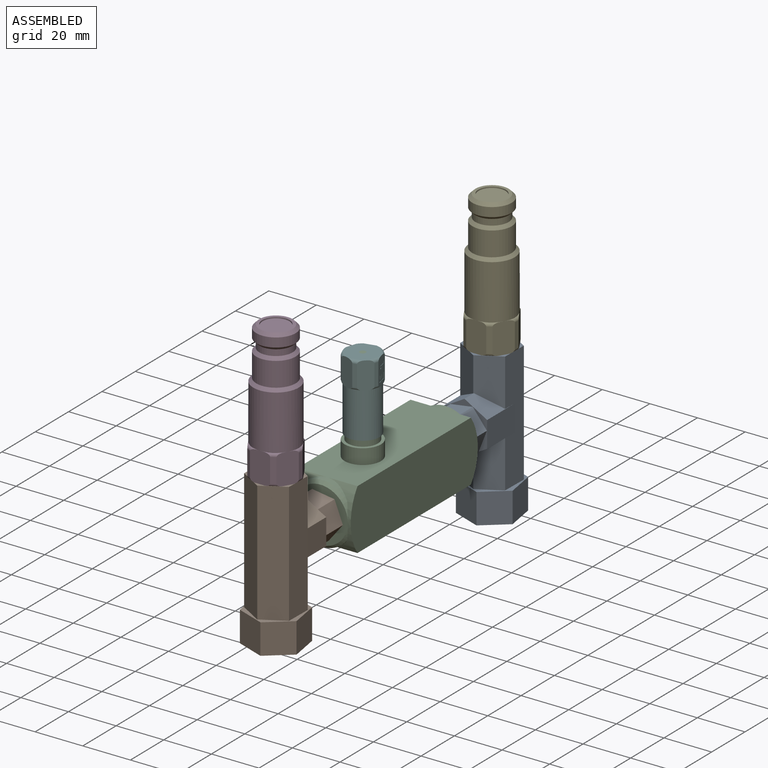
[diagram: assembled view]
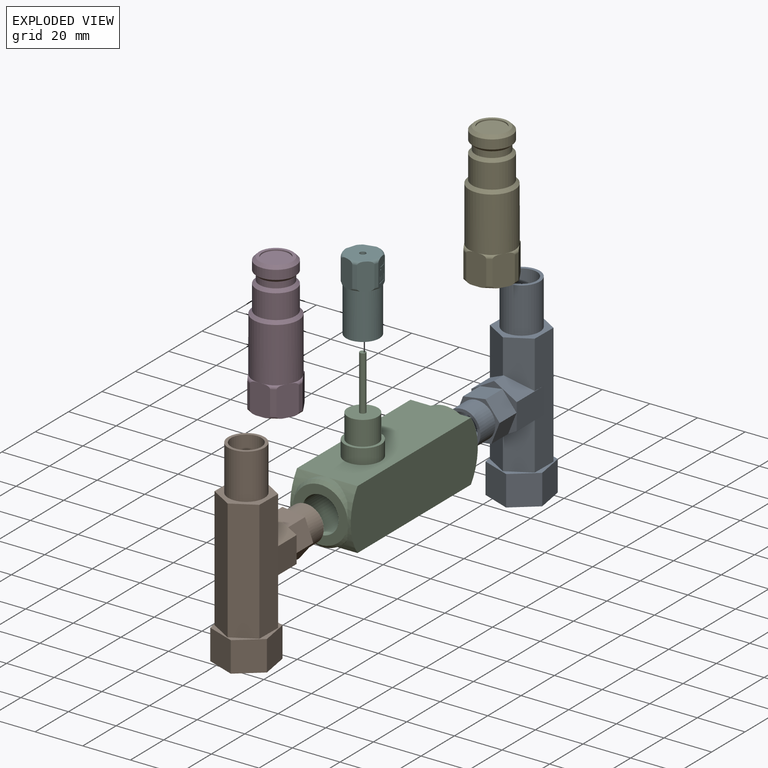
[diagram: exploded view]
GUIDED TOUR — MATED ASSEMBLY WITH SUBASSEMBLIES (Onshape document 58734178e3815217dc91f460, AutoMate assembly 58734178e3815217dc91f460_f798ebabe00ff8d9d65b1478_e0973994b852b6b7ab1b3e93_default)

This assembly has 8 component occurrences arranged in 6 top-level units: 4 individual components plus 2 subassemblies (S0, S1). The tour has two levels: first the top level, where each subassembly is treated as one rigid unit; then each subassembly is toured internally in its own section (nesting deeper than one subassembly level is flattened into its subassembly's section).

Components are labeled P0..P7 across the whole record; subassembly units are labeled S0..S1. A mate is a constraint between two units; its type names the relative motion it leaves free:
  FASTENED — locks the two components together rigidly (no relative motion),
  REVOLUTE — leaves rotation about the listed axis free (a hinge).
Axis/direction vectors are unit vectors and 'through' points are millimeter coordinates, both in the assembly's world frame.

TOP-LEVEL MATES (between units; each subassembly's internal mates are listed in its own section)
  1. FASTENED "Fastened 4": P4 <-> S1, direction (0.000, 0.000, -1.000) through (-30.42, -77.83, 31.53) mm
  2. FASTENED "Fastened 3": P5 <-> S0, direction (0.000, 0.000, -1.000) through (-30.42, 51.71, 31.53) mm
  3. FASTENED "Fastened 1": S0 <-> P3, direction (0.000, -1.000, 0.000) through (-30.42, 25.04, -12.92) mm
  4. REVOLUTE "Revolute 1": P6 <-> P3, axis (0.000, 0.000, 1.000) through (-30.42, -25.76, 39.15) mm
  5. FASTENED "Fastened 2": S1 <-> P3, direction (0.000, 1.000, 0.000) through (-30.42, -51.16, -12.92) mm

TOP-LEVEL ASSEMBLY ORDER
  1. P3 — the base component [order heuristic]
  2. S0 [order heuristic]
  3. S1 [order heuristic]
  4. P6 [order heuristic]
  5. P4 [order heuristic]
  6. P5 [order heuristic]
Order-tag legend:
  [order heuristic] — this assembly is geometrically interlocked (no collision-free removal order exists), so components are listed in mate-graph order; insertion feasibility is not verified.

Of the 8 component occurrences, 4 carry the full construction recipe — the FeatureScript program that regenerates the part's solid from scratch; the rest are supplied as boundary geometry only. Each toured unit is shown spotlighted twice — assembled, then exploded with a leader line back to its socket (green = recipe-attached component, orange = geometry-only, blue = subassembly unit; the rest desaturated gray).
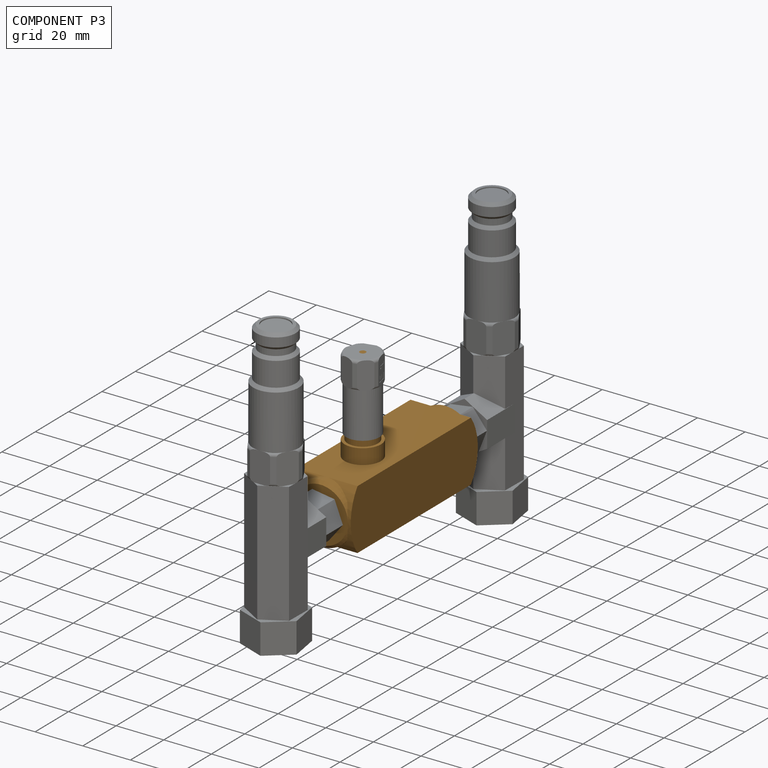
[diagram: component P3 — assembled]
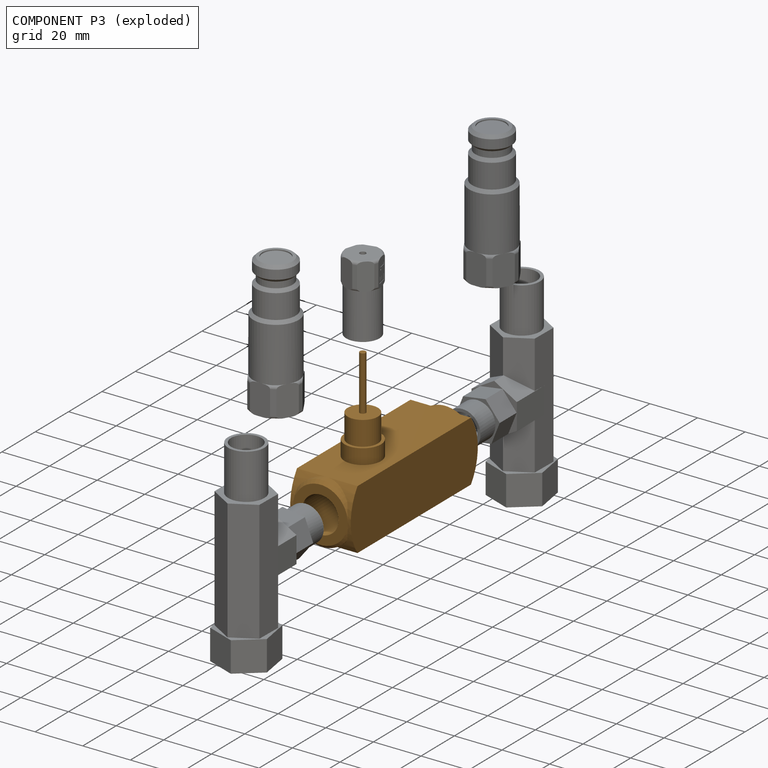
[diagram: component P3 — exploded]
COMPONENT P3 — geometry summary (no construction recipe available for this part):
  bounding box: 76.2 x 64.8 x 25.4 mm
  B-rep topology: 1 solid, 25 faces, 104 edges
  volume: 37021 mm^3 (30% of its bounding box)
  symmetry: mirror-symmetric across its x mid-plane
Held by: FASTENED mate "Fastened 1" to P0; REVOLUTE mate "Revolute 1" to P6; FASTENED mate "Fastened 2" to P2.
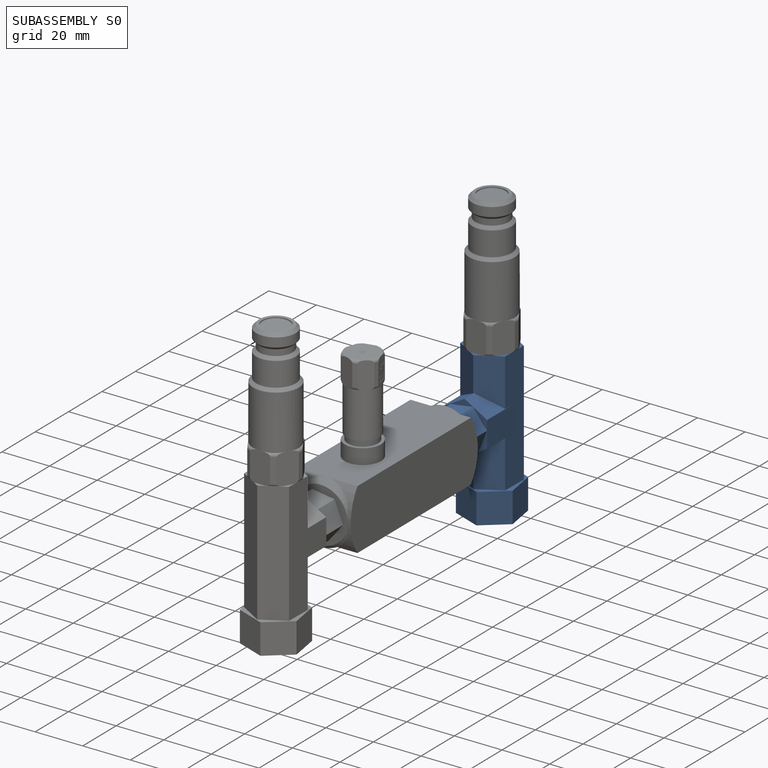
[diagram: subassembly S0 — assembled]
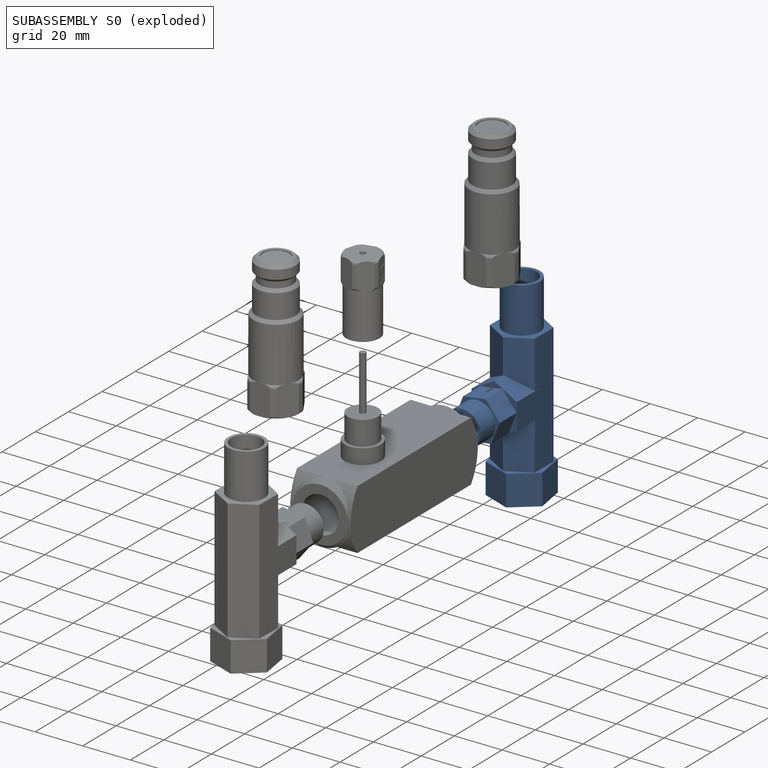
[diagram: subassembly S0 — exploded]
SUBASSEMBLY S0 — 2 components (P0, P1), of which 2 recipe-attached; toured below.
Held by: FASTENED mate "Fastened 3" to P5; FASTENED mate "Fastened 1" to P3.
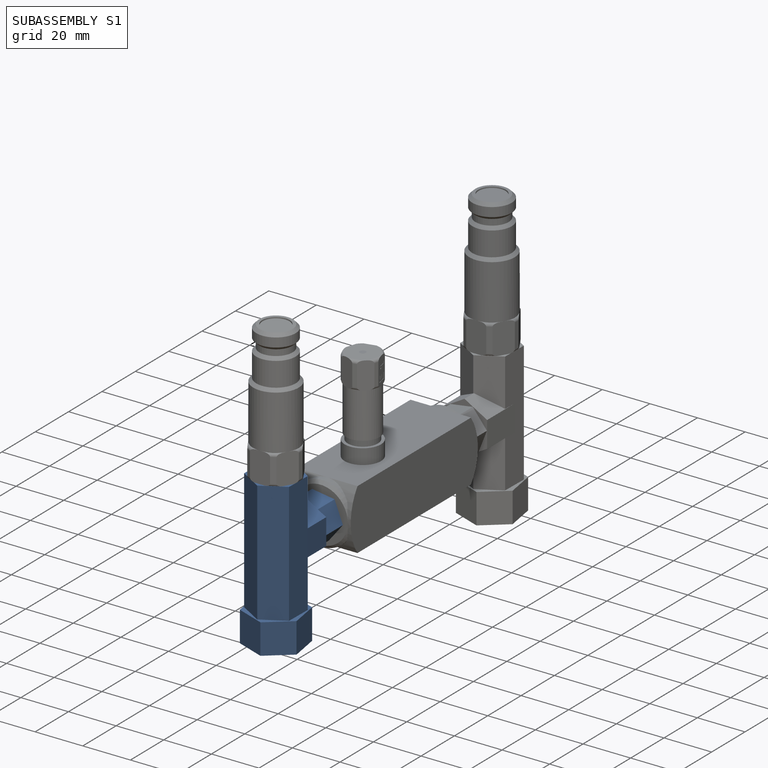
[diagram: subassembly S1 — assembled]
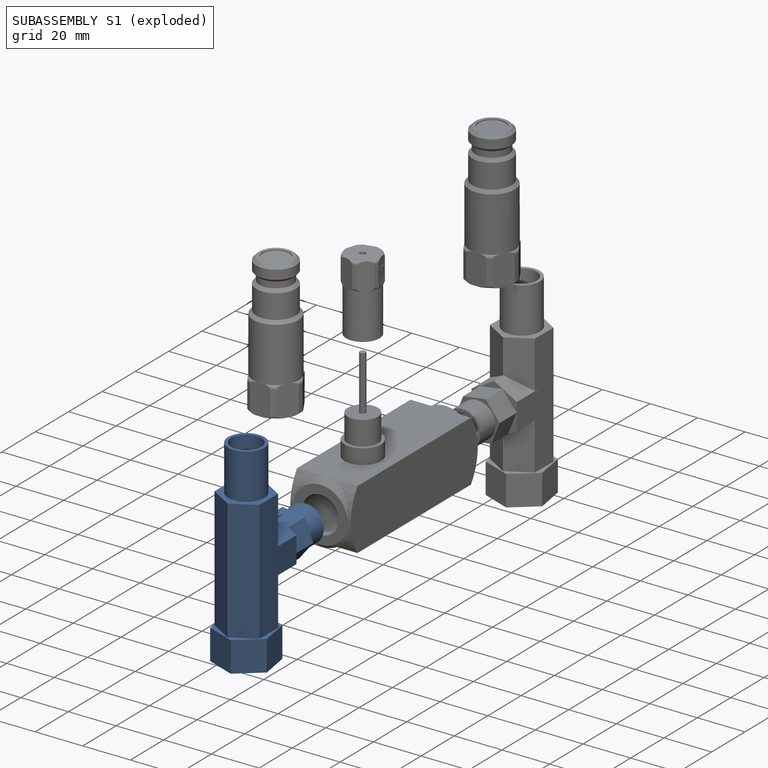
[diagram: subassembly S1 — exploded]
SUBASSEMBLY S1 — 2 components (P2, P7), of which 2 recipe-attached; toured below.
Held by: FASTENED mate "Fastened 4" to P4; FASTENED mate "Fastened 2" to P3.
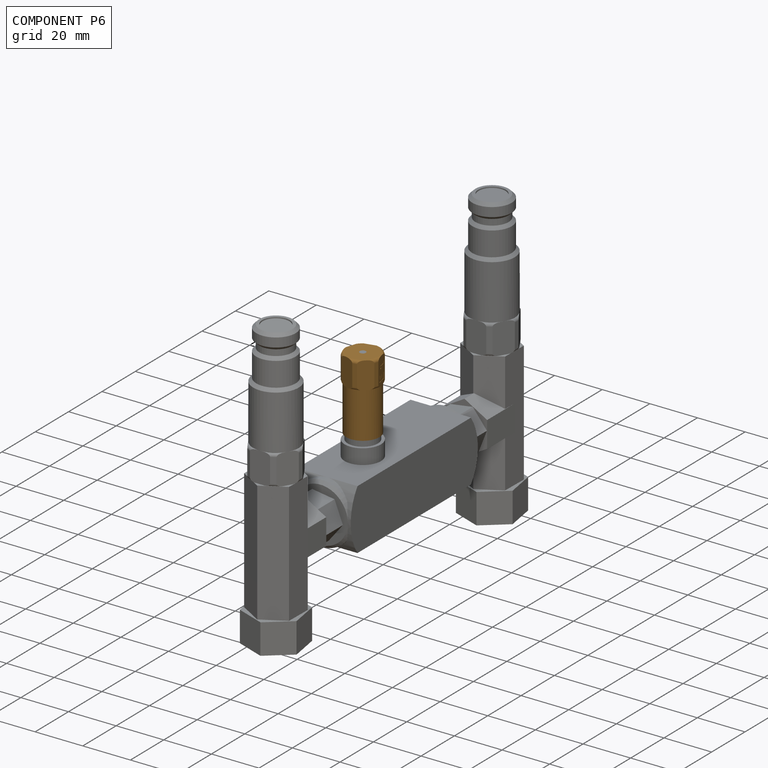
[diagram: component P6 — assembled]
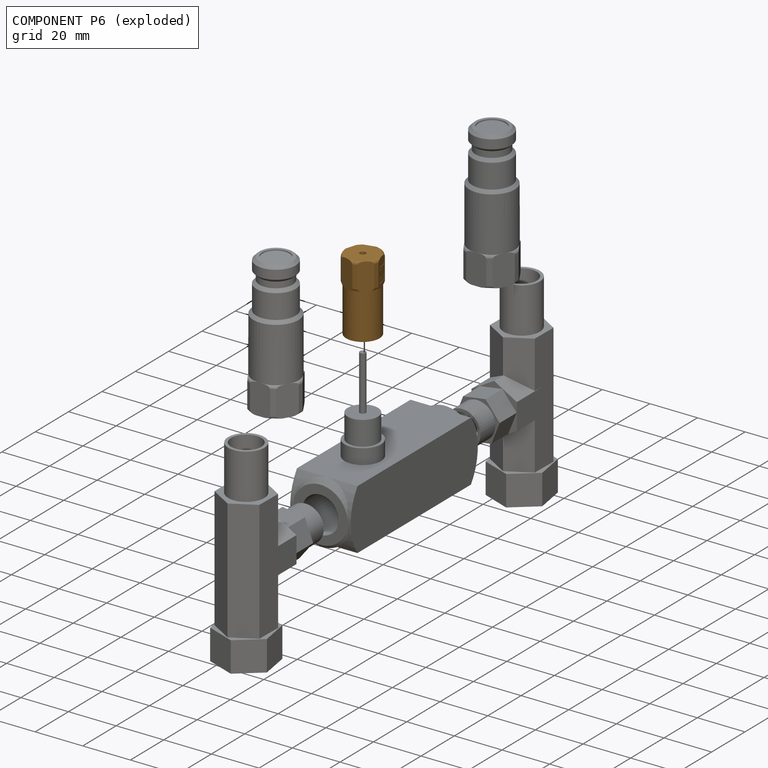
[diagram: component P6 — exploded]
COMPONENT P6 — geometry summary (no construction recipe available for this part):
  bounding box: 30.5 x 16.2 x 15.1 mm
  B-rep topology: 1 solid, 66 faces, 360 edges
  volume: 3488 mm^3 (47% of its bounding box)
  symmetry: 6-fold rotationally symmetric about the y axis; mirror-symmetric across its x mid-plane, z mid-plane
Held by: REVOLUTE mate "Revolute 1" to P3.
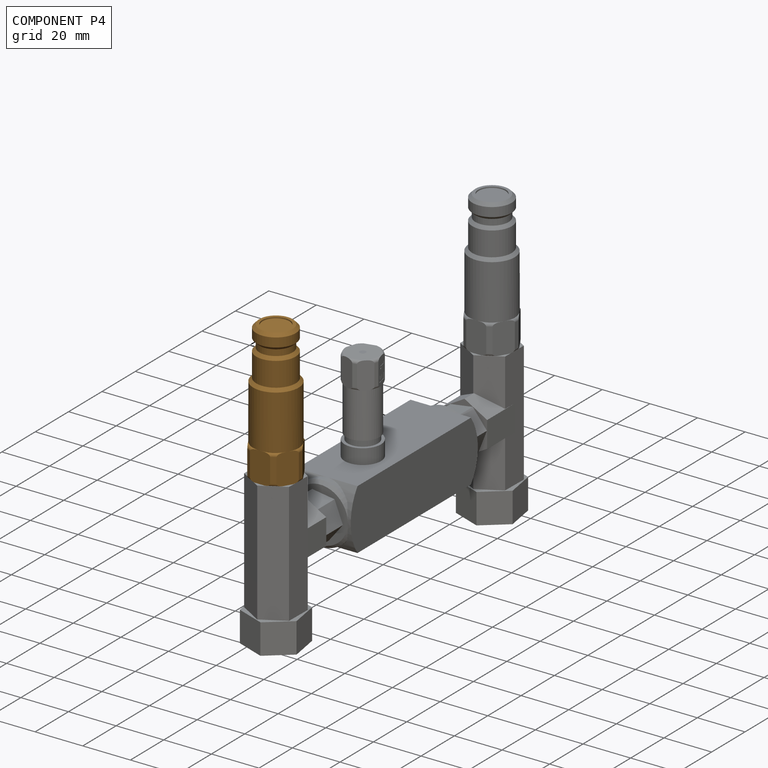
[diagram: component P4 — assembled]
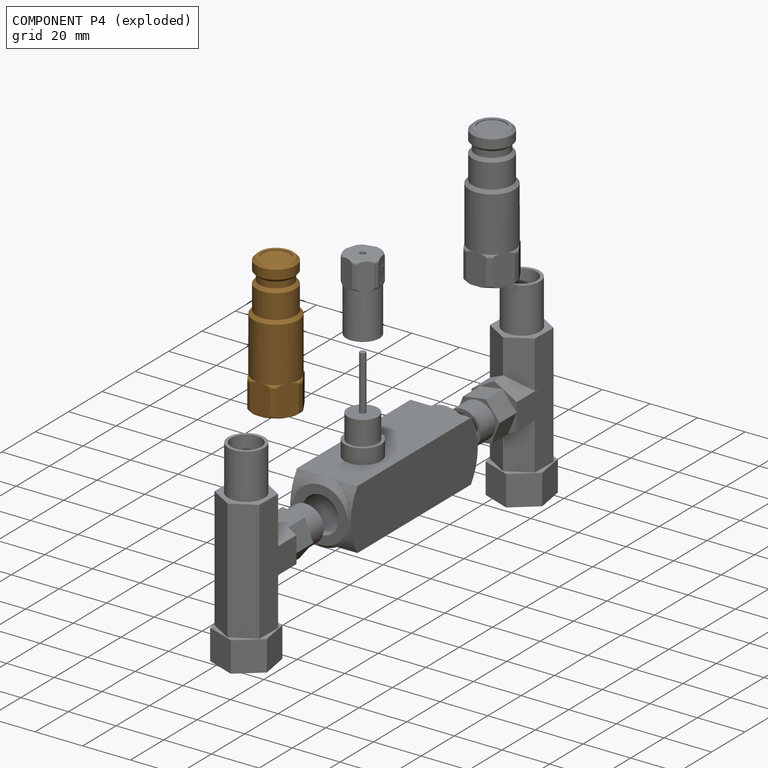
[diagram: component P4 — exploded]
COMPONENT P4 — geometry summary (no construction recipe available for this part):
  bounding box: 57.2 x 21.2 x 20.7 mm
  B-rep topology: 1 solid, 50 faces, 256 edges
  volume: 11306 mm^3 (45% of its bounding box)
  symmetry: 6-fold rotationally symmetric about the y axis; mirror-symmetric across its x mid-plane, z mid-plane
Held by: FASTENED mate "Fastened 4" to P2.
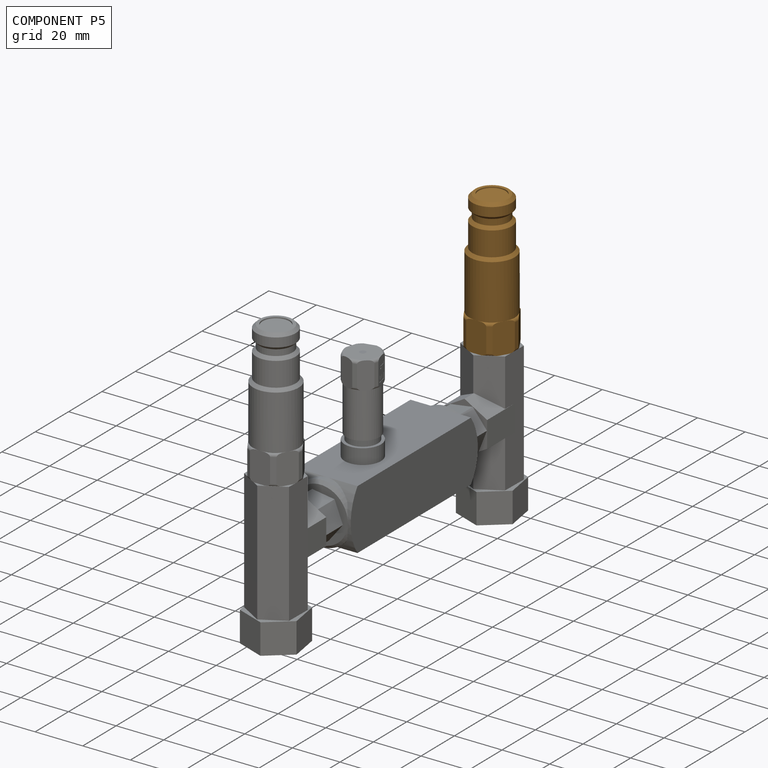
[diagram: component P5 — assembled]
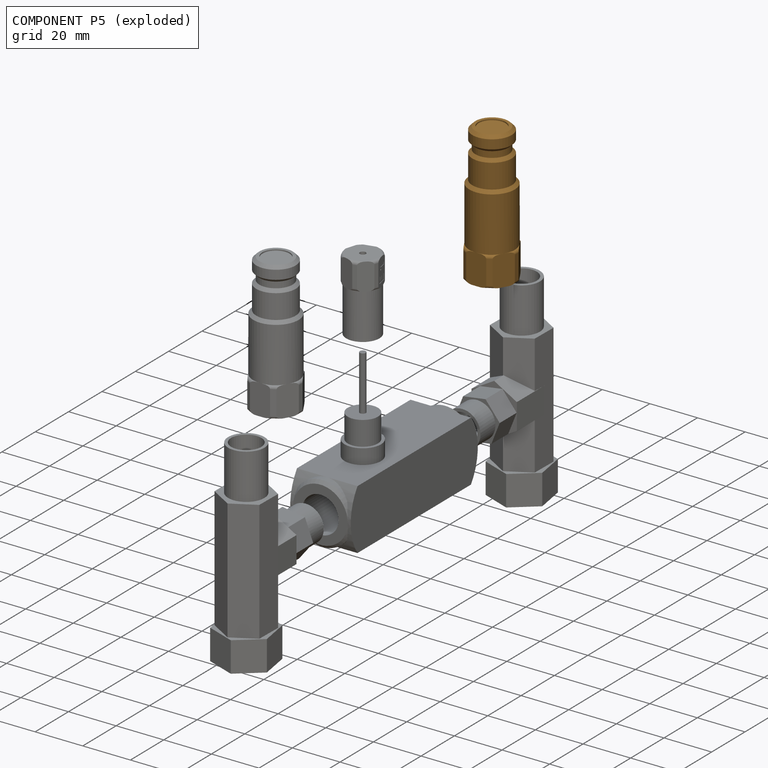
[diagram: component P5 — exploded]
COMPONENT P5 — geometry summary (no construction recipe available for this part):
  bounding box: 57.2 x 21.2 x 20.7 mm
  B-rep topology: 1 solid, 50 faces, 256 edges
  volume: 11306 mm^3 (45% of its bounding box)
  symmetry: 6-fold rotationally symmetric about the y axis; mirror-symmetric across its x mid-plane, z mid-plane
Held by: FASTENED mate "Fastened 3" to P0.
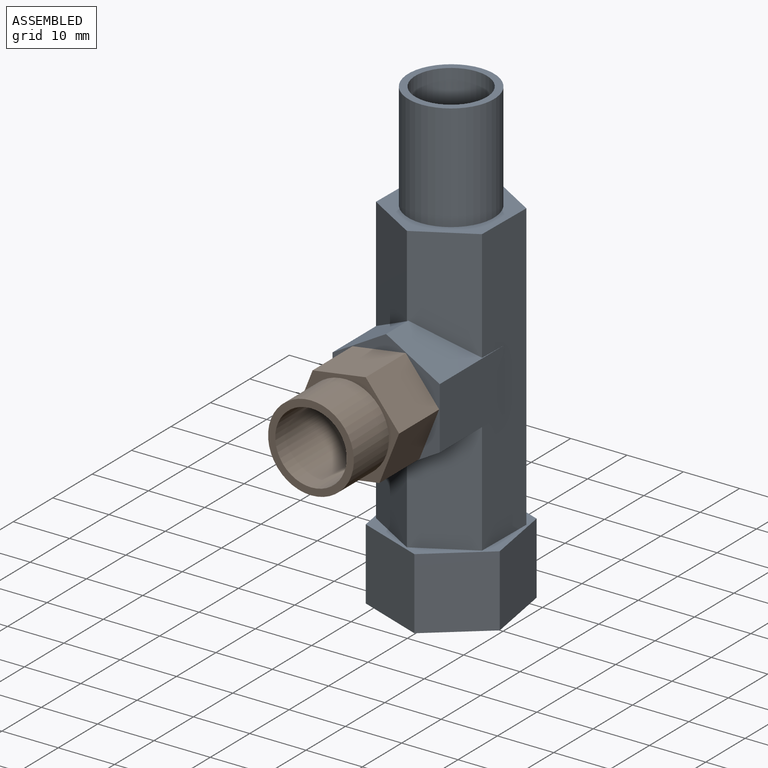
[diagram: subassembly S0 — assembled view]
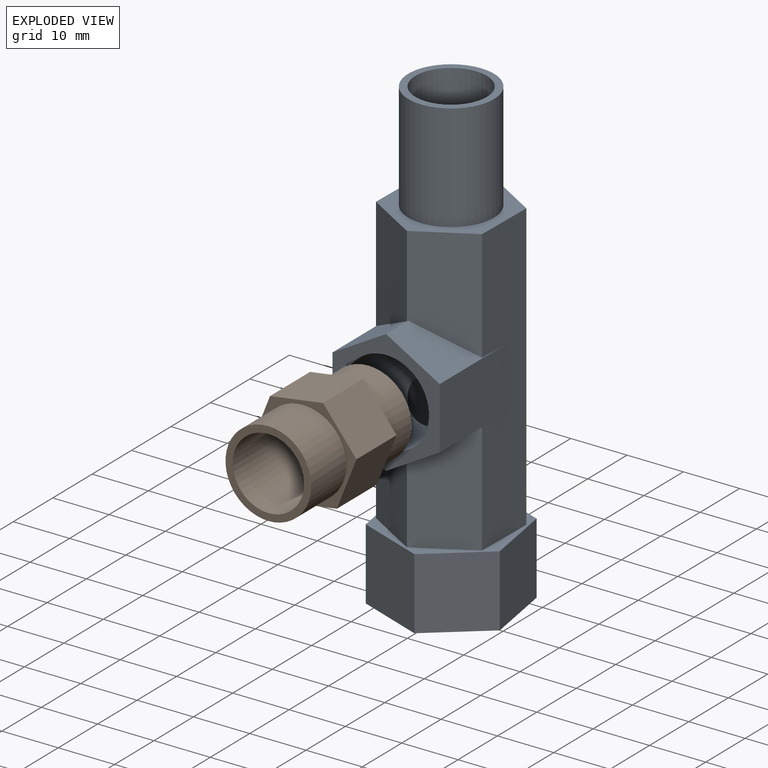
[diagram: subassembly S0 — exploded view]
SUBASSEMBLY S0 TOUR — 2 components, shown here in isolation at its own camera.

INTERNAL MATES
  1. FASTENED "Fastened 1": P1 <-> P0, direction (0.000, -1.000, 0.000) through (-30.42, 35.20, -12.92) mm
  2. FASTENED "Fastened 1": P1 <-> P0, direction (0.000, -1.000, 0.000) through (-30.42, 35.20, -12.92) mm

ASSEMBLY ORDER (within the subassembly)
  1. P0 — the base component [order heuristic]
  2. P1 [order heuristic]
Order-tag legend:
  [order heuristic] — this assembly is geometrically interlocked (no collision-free removal order exists), so components are listed in mate-graph order; insertion feasibility is not verified.
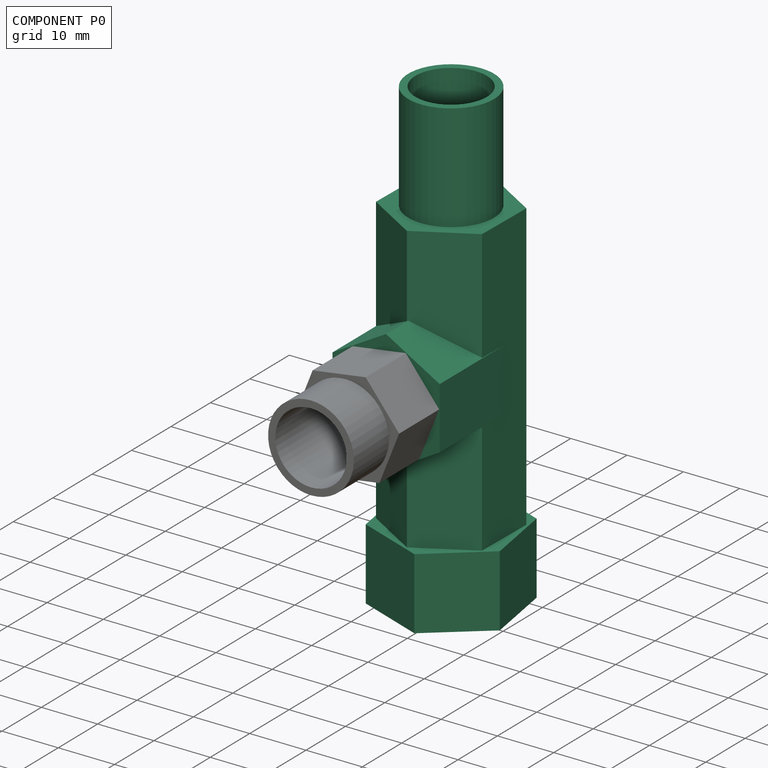
[diagram: component P0 — assembled]
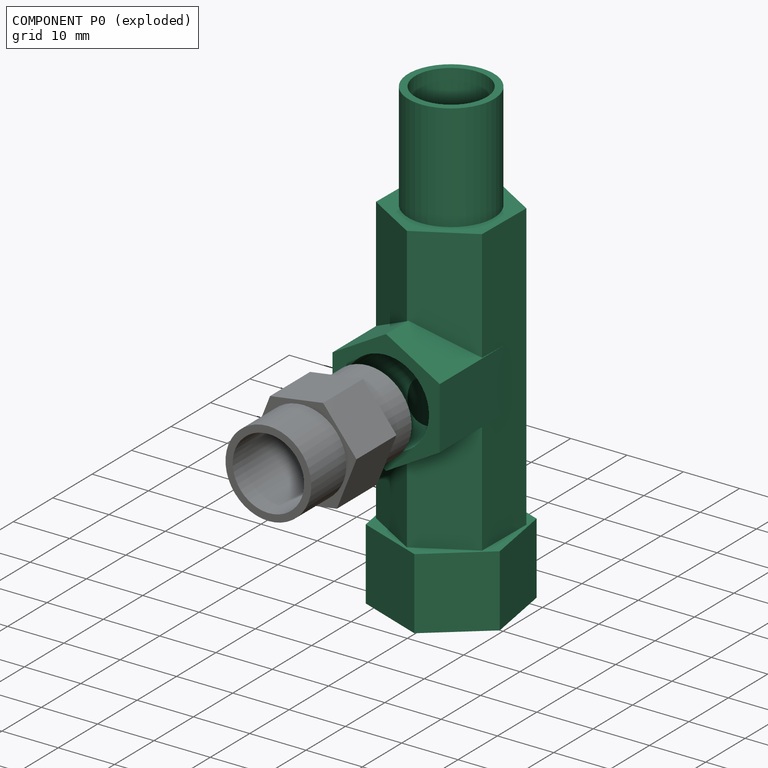
[diagram: component P0 — exploded]
COMPONENT P0 — recipe-attached (CADFS 00433585, mesh-verified: the recipe's output STEP matches this component's geometry to below the mesh-comparison resolution (tessellation chordal tolerance ~0.136 mm)).
Held by: FASTENED mate "Fastened 1" to P1; FASTENED mate "Fastened 1" to P1.
Construction recipe (FeatureScript — the CAD program that rebuilds this solid; sketch coordinates are in the units given by the * unit suffixes, e.g. mm):

FeatureScript 1511;
import(path : "onshape/std/geometry.fs", version : "1511.0");
import(path : "onshape/std/common.fs", version : "1511.0");
const mm = millimeter;
const VERTEX = EntityType.VERTEX;
const EDGE = EntityType.EDGE;
const FACE = EntityType.FACE;
const BODY = EntityType.BODY;
function v(x, y){return vector(x, y);}
function OD(order){return orderDisambiguation(order);}
function OSD(set){return originalSetDisambiguation(set);}
function TD(topology){return topologyDisambiguation(topology);}
function TDD(query){return trueDependencyDisambiguation(query);}
function sQuery(a, b, c) {return sketchEntityQuery(a, b, c);}

annotation { "Feature Type Name" : "Feature", "Feature Type Description" : "" }
export const myFeature = defineFeature(function(context is Context, id is Id, definition is map)
    precondition{}
    {
        {
            var Q0;
            Q0=qCreatedBy(makeId("Front.planeOp"),FACE);
            var sketch = newSketch(context, id + "F0", { "sketchPlane" : qUnion([Q0])});
            skCircle(sketch, "E0.cCircle", {"center": v(0, 0) * mm, "radius": 9.53 * mm, "construction": true});
            skLineSegment(sketch, "E0.0", {"start": v(-11, -0.18) * mm, "end": v(-5.65, 9.44) * mm});
            skLineSegment(sketch, "E0.1", {"start": v(-5.65, 9.44) * mm, "end": v(5.35, 9.61) * mm});
            skLineSegment(sketch, "E0.2", {"start": v(5.35, 9.61) * mm, "end": v(11, 0.18) * mm});
            skLineSegment(sketch, "E0.3", {"start": v(11, 0.18) * mm, "end": v(5.65, -9.44) * mm});
            skLineSegment(sketch, "E0.4", {"start": v(5.65, -9.44) * mm, "end": v(-5.35, -9.61) * mm});
            skLineSegment(sketch, "E0.5", {"start": v(-5.35, -9.61) * mm, "end": v(-11, -0.18) * mm});
            skPoint(sketch, "E0.0.midPoint", {"position": v(-8.32, 4.63) * mm});
            skSolve(sketch);
        }
        {
            var Q0;
            Q0=makeQuery(id+"F0.imprint","IMPRINT",FACE,{"disambiguationData":[TD([[makeQuery(id+"F0.imprint","IMPRINT",EDGE,{"derivedFrom":sQuery(id+"F0.wireOp",EDGE,"E0.0")}),-1.0]])]});
            extrude(context, id + "F1", {"entities" : qUnion([Q0]), "depth" : 50.8 * mm});
        }
        {
            var Q0;
            Q0=qCreatedBy(makeId("Right.planeOp"),FACE);
            var sketch = newSketch(context, id + "F2", { "sketchPlane" : qUnion([Q0])});
            skCircle(sketch, "E1.cCircle", {"center": v(-25.4, 0) * mm, "radius": 9.53 * mm, "construction": true});
            skLineSegment(sketch, "E1.0", {"start": v(-30.9, 9.53) * mm, "end": v(-19.9, 9.53) * mm});
            skLineSegment(sketch, "E1.1", {"start": v(-19.9, 9.53) * mm, "end": v(-14.4, 0) * mm});
            skLineSegment(sketch, "E1.2", {"start": v(-14.4, 0) * mm, "end": v(-19.9, -9.53) * mm});
            skLineSegment(sketch, "E1.3", {"start": v(-19.9, -9.53) * mm, "end": v(-30.9, -9.53) * mm});
            skLineSegment(sketch, "E1.4", {"start": v(-30.9, -9.53) * mm, "end": v(-36.4, 0) * mm});
            skLineSegment(sketch, "E1.5", {"start": v(-36.4, 0) * mm, "end": v(-30.9, 9.53) * mm});
            skPoint(sketch, "E1.0.midPoint", {"position": v(-25.4, 9.53) * mm});
            skSolve(sketch);
        }
        {
            var Q0;
            Q0=qSketchRegion(id+"F2",true);
            extrude(context, id + "F3", {"entities" : qUnion([Q0]), "operationType" : NewBodyOperationType.ADD, "oppositeDirection" : true, "depth" : 16.5 * mm});
        }
        {
            var Q0;
            Q0=makeQuery(id+"F1.opExtrude","CAP_FACE",FACE,{"disambiguationData":[OSD([sQuery(id+"F0.wireOp",EDGE,"E0.0"),sQuery(id+"F0.wireOp",EDGE,"E0.1"),sQuery(id+"F0.wireOp",EDGE,"E0.2"),sQuery(id+"F0.wireOp",EDGE,"E0.3"),sQuery(id+"F0.wireOp",EDGE,"E0.4"),sQuery(id+"F0.wireOp",EDGE,"E0.5")])],"isStart":true});
            var sketch = newSketch(context, id + "F4", { "sketchPlane" : qUnion([Q0])});
            skCircle(sketch, "E2", {"center": v(0, 0) * mm, "radius": 7.62 * mm});
            skSolve(sketch);
        }
        {
            var Q0;
            Q0=makeQuery(id+"F1.opExtrude","CAP_FACE",FACE,{"disambiguationData":[OSD([sQuery(id+"F0.wireOp",EDGE,"E0.0"),sQuery(id+"F0.wireOp",EDGE,"E0.1"),sQuery(id+"F0.wireOp",EDGE,"E0.2"),sQuery(id+"F0.wireOp",EDGE,"E0.3"),sQuery(id+"F0.wireOp",EDGE,"E0.4"),sQuery(id+"F0.wireOp",EDGE,"E0.5")])],"isStart":false});
            var sketch = newSketch(context, id + "F5", { "sketchPlane" : qUnion([Q0])});
            skCircle(sketch, "E3.cCircle", {"center": v(0, 0) * mm, "radius": 10.8 * mm, "construction": true});
            skPoint(sketch, "E3.cCircle.perimeterSnap0", {"position": v(-8.32, 4.63) * mm});
            skLineSegment(sketch, "E3.0", {"start": v(-12.3, 2.07) * mm, "end": v(-4.36, 11.68) * mm});
            skLineSegment(sketch, "E3.1", {"start": v(-4.36, 11.68) * mm, "end": v(7.94, 9.61) * mm});
            skLineSegment(sketch, "E3.2", {"start": v(7.94, 9.61) * mm, "end": v(12.3, -2.07) * mm});
            skLineSegment(sketch, "E3.3", {"start": v(12.3, -2.07) * mm, "end": v(4.36, -11.68) * mm});
            skLineSegment(sketch, "E3.4", {"start": v(4.36, -11.68) * mm, "end": v(-7.94, -9.61) * mm});
            skLineSegment(sketch, "E3.5", {"start": v(-7.94, -9.61) * mm, "end": v(-12.3, 2.07) * mm});
            skPoint(sketch, "E3.0.midPoint", {"position": v(-8.32, 6.87) * mm});
            skPoint(sketch, "E3.0.midPoint.positionSnap0", {"position": v(-8.32, 4.63) * mm});
            skSolve(sketch);
        }
        {
            var Q0;
            Q0=qSketchRegion(id+"F5",true);
            extrude(context, id + "F6", {"entities" : qUnion([Q0]), "operationType" : NewBodyOperationType.ADD, "depth" : 12.7 * mm});
        }
        {
            var Q0;
            Q0=makeQuery(id+"F4.imprint","IMPRINT",FACE,{"disambiguationData":[TD([[makeQuery(id+"F4.imprint","IMPRINT",EDGE,{"derivedFrom":sQuery(id+"F4.wireOp",EDGE,"E2")}),1.0]])]});
            extrude(context, id + "F7", {"entities" : qUnion([Q0]), "operationType" : NewBodyOperationType.ADD, "depth" : 19.05 * mm});
        }
        {
            var Q0;
            Q0=makeQuery(id+"F7.opExtrude","CAP_FACE",FACE,{"disambiguationData":[OSD([sQuery(id+"F4.wireOp",EDGE,"E2")])],"isStart":false});
            var sketch = newSketch(context, id + "F8", { "sketchPlane" : qUnion([Q0])});
            skCircle(sketch, "E4", {"center": v(0, 0) * mm, "radius": 6.35 * mm});
            skSolve(sketch);
        }
        {
            var Q0;
            Q0=makeQuery(id+"F8.imprint","IMPRINT",FACE,{"disambiguationData":[TD([[makeQuery(id+"F8.imprint","IMPRINT",EDGE,{"derivedFrom":sQuery(id+"F8.wireOp",EDGE,"E4")}),1.0]])]});
            extrude(context, id + "F9", {"entities" : qUnion([Q0]), "operationType" : NewBodyOperationType.REMOVE, "oppositeDirection" : true, "depth" : 70.36 * mm});
        }
        {
            var Q0;
            Q0=makeQuery(id+"F3.opExtrude","CAP_FACE",FACE,{"disambiguationData":[OSD([sQuery(id+"F2.wireOp",EDGE,"E1.0"),sQuery(id+"F2.wireOp",EDGE,"E1.1"),sQuery(id+"F2.wireOp",EDGE,"E1.2"),sQuery(id+"F2.wireOp",EDGE,"E1.3"),sQuery(id+"F2.wireOp",EDGE,"E1.4"),sQuery(id+"F2.wireOp",EDGE,"E1.5")])],"isStart":false});
            var sketch = newSketch(context, id + "F10", { "sketchPlane" : qUnion([Q0])});
            skCircle(sketch, "E5", {"center": v(25.4, 0) * mm, "radius": 7.62 * mm});
            skPoint(sketch, "E5.centerSnap0", {"position": v(25.4, 9.53) * mm});
            skPoint(sketch, "E5.perimeterSnap0", {"position": v(25.4, 9.53) * mm});
            skPoint(sketch, "E5.perimeterSnap1", {"position": v(33.65, 4.76) * mm});
            skSolve(sketch);
        }
        {
            var Q0;
            Q0=makeQuery(id+"F10.imprint","IMPRINT",FACE,{"disambiguationData":[TD([[makeQuery(id+"F10.imprint","IMPRINT",EDGE,{"derivedFrom":sQuery(id+"F10.wireOp",EDGE,"E5")}),1.0]])]});
            extrude(context, id + "F11", {"entities" : qUnion([Q0]), "operationType" : NewBodyOperationType.REMOVE, "oppositeDirection" : true, "depth" : 17.02 * mm});
        }
    });
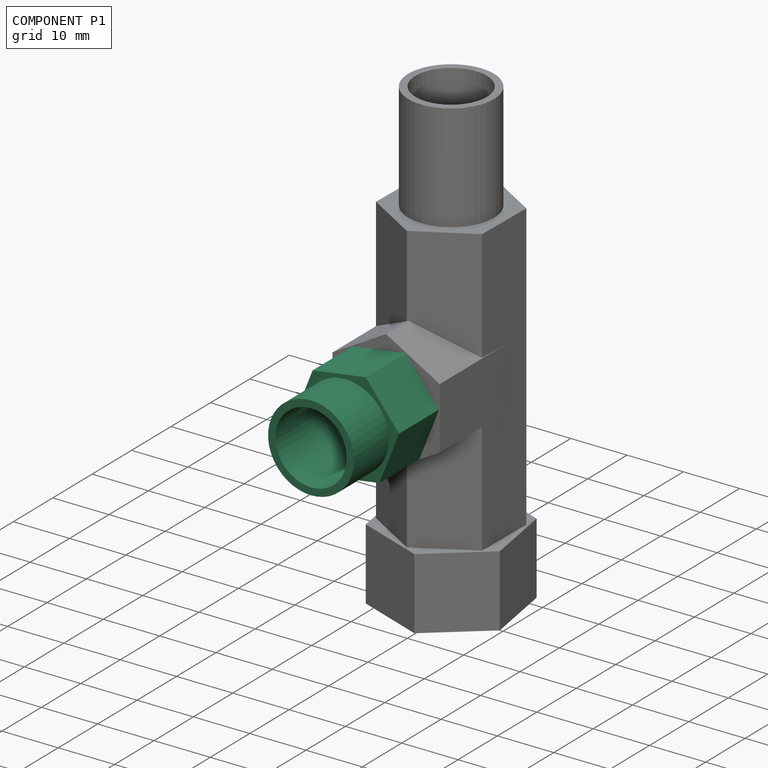
[diagram: component P1 — assembled]
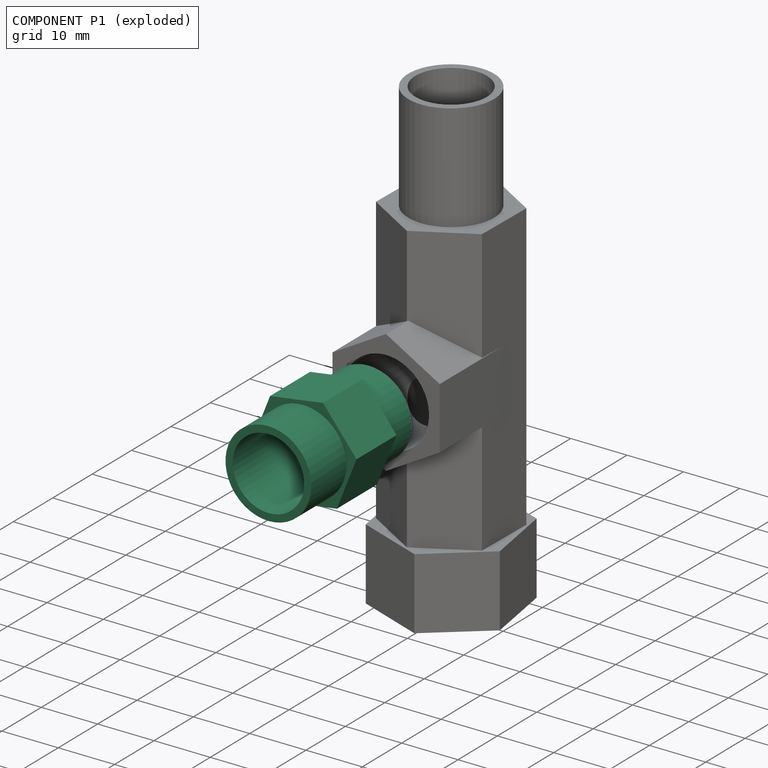
[diagram: component P1 — exploded]
COMPONENT P1 — recipe-attached (CADFS 00433584, mesh-verified: the recipe's output STEP matches this component's geometry to below the mesh-comparison resolution (tessellation chordal tolerance ~0.0544 mm)).
Held by: FASTENED mate "Fastened 1" to P0; FASTENED mate "Fastened 1" to P0.
Construction recipe (FeatureScript — the CAD program that rebuilds this solid; sketch coordinates are in the units given by the * unit suffixes, e.g. mm):

FeatureScript 1511;
import(path : "onshape/std/geometry.fs", version : "1511.0");
import(path : "onshape/std/common.fs", version : "1511.0");
const mm = millimeter;
const VERTEX = EntityType.VERTEX;
const EDGE = EntityType.EDGE;
const FACE = EntityType.FACE;
const BODY = EntityType.BODY;
function v(x, y){return vector(x, y);}
function OD(order){return orderDisambiguation(order);}
function OSD(set){return originalSetDisambiguation(set);}
function TD(topology){return topologyDisambiguation(topology);}
function TDD(query){return trueDependencyDisambiguation(query);}
function sQuery(a, b, c) {return sketchEntityQuery(a, b, c);}

annotation { "Feature Type Name" : "Feature", "Feature Type Description" : "" }
export const myFeature = defineFeature(function(context is Context, id is Id, definition is map)
    precondition{}
    {
        {
            var Q0;
            Q0=qCreatedBy(makeId("Right.planeOp"),FACE);
            var sketch = newSketch(context, id + "F0", { "sketchPlane" : qUnion([Q0])});
            skCircle(sketch, "E0.cCircle", {"center": v(0, 0) * mm, "radius": 8.26 * mm, "construction": true});
            skLineSegment(sketch, "E0.0", {"start": v(-7.46, 5.94) * mm, "end": v(1.41, 9.43) * mm});
            skLineSegment(sketch, "E0.1", {"start": v(1.41, 9.43) * mm, "end": v(8.87, 3.5) * mm});
            skLineSegment(sketch, "E0.2", {"start": v(8.87, 3.5) * mm, "end": v(7.46, -5.94) * mm});
            skLineSegment(sketch, "E0.3", {"start": v(7.46, -5.94) * mm, "end": v(-1.41, -9.43) * mm});
            skLineSegment(sketch, "E0.4", {"start": v(-1.41, -9.43) * mm, "end": v(-8.87, -3.5) * mm});
            skLineSegment(sketch, "E0.5", {"start": v(-8.87, -3.5) * mm, "end": v(-7.46, 5.94) * mm});
            skPoint(sketch, "E0.0.midPoint", {"position": v(-3.02, 7.68) * mm});
            skSolve(sketch);
        }
        {
            var Q0;
            Q0=makeQuery(id+"F0.imprint","IMPRINT",FACE,{"disambiguationData":[TD([[makeQuery(id+"F0.imprint","IMPRINT",EDGE,{"derivedFrom":sQuery(id+"F0.wireOp",EDGE,"E0.0")}),-1.0]])]});
            extrude(context, id + "F1", {"entities" : qUnion([Q0]), "depth" : 10.16 * mm});
        }
        {
            var Q0;
            Q0=makeQuery(id+"F1.opExtrude","CAP_FACE",FACE,{"disambiguationData":[OSD([sQuery(id+"F0.wireOp",EDGE,"E0.0"),sQuery(id+"F0.wireOp",EDGE,"E0.1"),sQuery(id+"F0.wireOp",EDGE,"E0.2"),sQuery(id+"F0.wireOp",EDGE,"E0.3"),sQuery(id+"F0.wireOp",EDGE,"E0.4"),sQuery(id+"F0.wireOp",EDGE,"E0.5")])],"isStart":false});
            var sketch = newSketch(context, id + "F2", { "sketchPlane" : qUnion([Q0])});
            skCircle(sketch, "E1", {"center": v(0, 0) * mm, "radius": 7.62 * mm});
            skSolve(sketch);
        }
        {
            var Q0;
            Q0=makeQuery(id+"F2.imprint","IMPRINT",FACE,{"disambiguationData":[TD([[makeQuery(id+"F2.imprint","IMPRINT",EDGE,{"derivedFrom":sQuery(id+"F2.wireOp",EDGE,"E1")}),1.0]])]});
            extrude(context, id + "F3", {"entities" : qUnion([Q0]), "operationType" : NewBodyOperationType.ADD, "depth" : 6.35 * mm, "hasSecondDirection" : true, "secondDirectionOppositeDirection" : true, "secondDirectionDepth" : 19.05 * mm});
        }
        {
            var Q0;
            Q0=makeQuery(id+"F3.opExtrude","CAP_FACE",FACE,{"disambiguationData":[OSD([sQuery(id+"F2.wireOp",EDGE,"E1")])],"isStart":true});
            var sketch = newSketch(context, id + "F4", { "sketchPlane" : qUnion([Q0])});
            skCircle(sketch, "E2", {"center": v(0, 0) * mm, "radius": 6.35 * mm});
            skSolve(sketch);
        }
        {
            var Q0;
            Q0=makeQuery(id+"F4.imprint","IMPRINT",FACE,{"disambiguationData":[TD([[makeQuery(id+"F4.imprint","IMPRINT",EDGE,{"derivedFrom":sQuery(id+"F4.wireOp",EDGE,"E2")}),1.0]])]});
            extrude(context, id + "F5", {"entities" : qUnion([Q0]), "operationType" : NewBodyOperationType.REMOVE, "endBound" : BoundingType.THROUGH_ALL, "oppositeDirection" : true, "depth" : 25.4 * mm});
        }
    });
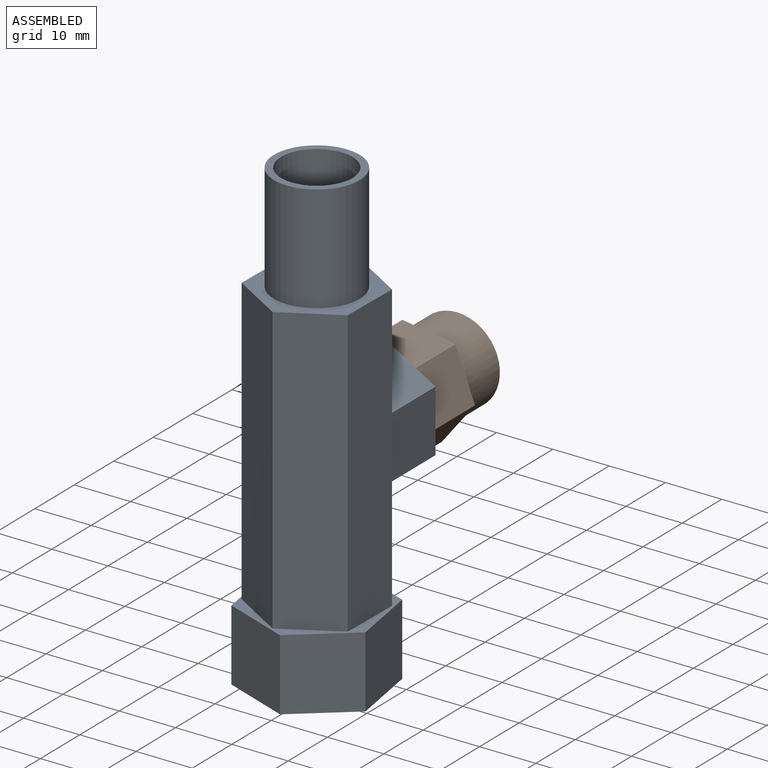
[diagram: subassembly S1 — assembled view]
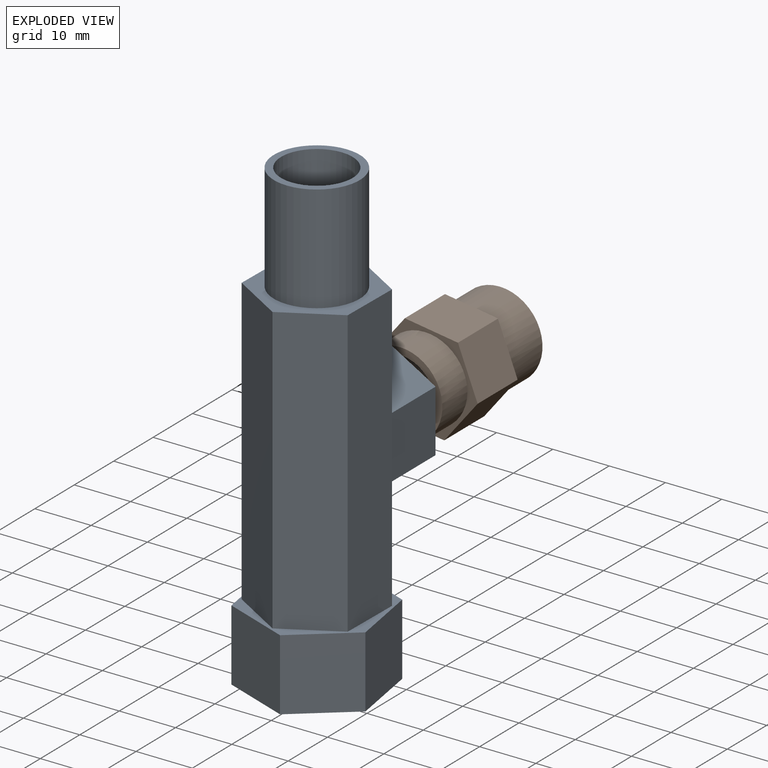
[diagram: subassembly S1 — exploded view]
SUBASSEMBLY S1 TOUR — 2 components, shown here in isolation at its own camera.

INTERNAL MATES
  1. FASTENED "Fastened 1": P7 <-> P2, direction (0.000, 1.000, 0.000) through (-30.42, -61.32, -12.92) mm
  2. FASTENED "Fastened 1": P7 <-> P2, direction (0.000, 1.000, 0.000) through (-30.42, -61.32, -12.92) mm

ASSEMBLY ORDER (within the subassembly)
  1. P2 — the base component [order heuristic]
  2. P7 [order heuristic]
Order-tag legend:
  [order heuristic] — this assembly is geometrically interlocked (no collision-free removal order exists), so components are listed in mate-graph order; insertion feasibility is not verified.
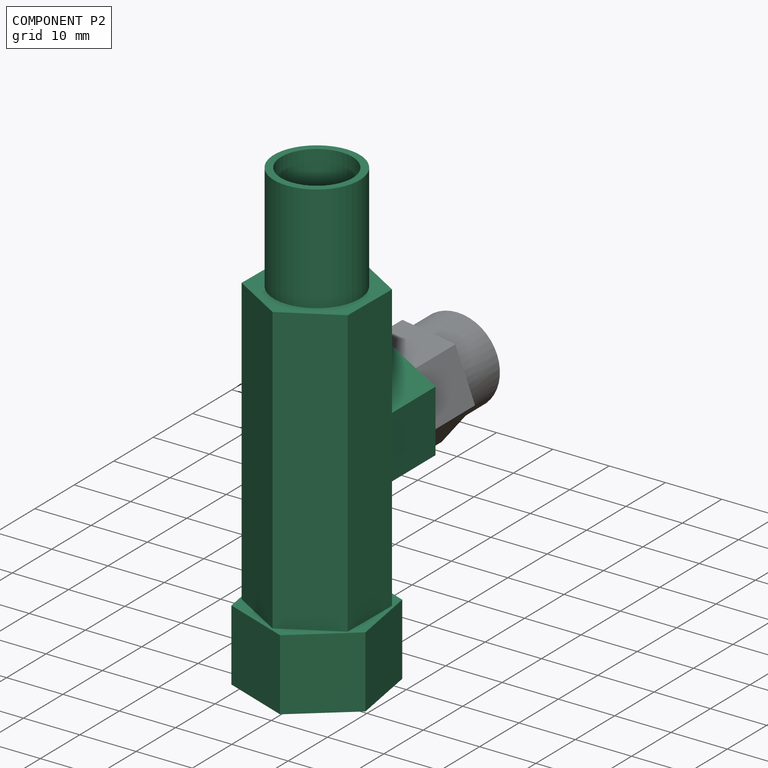
[diagram: component P2 — assembled]
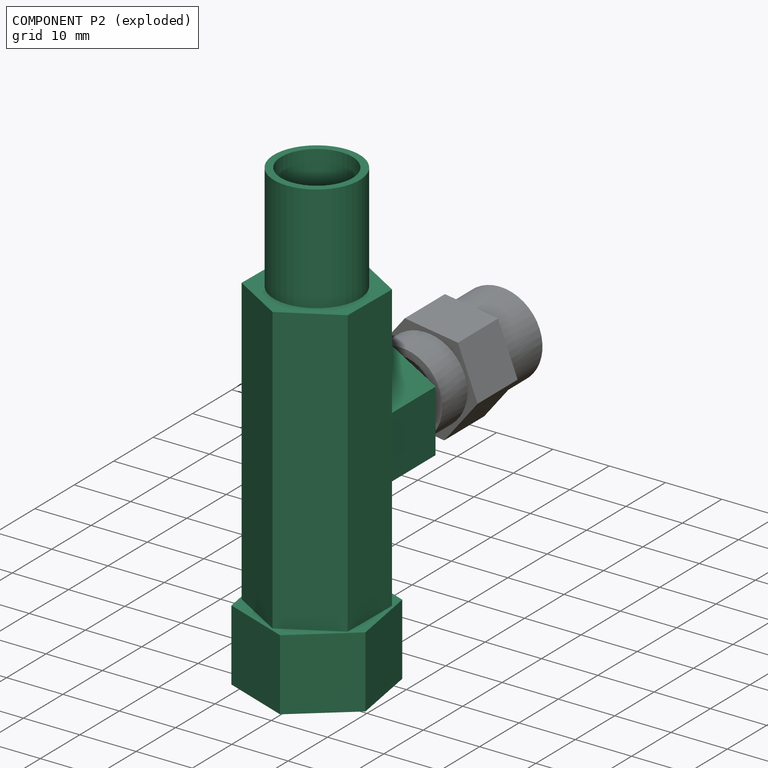
[diagram: component P2 — exploded]
COMPONENT P2 — recipe-attached (CADFS 00433585, mesh-verified: the recipe's output STEP matches this component's geometry to below the mesh-comparison resolution (tessellation chordal tolerance ~0.136 mm)).
Held by: FASTENED mate "Fastened 1" to P7; FASTENED mate "Fastened 1" to P7.
Construction recipe (FeatureScript — the CAD program that rebuilds this solid; sketch coordinates are in the units given by the * unit suffixes, e.g. mm):

FeatureScript 1511;
import(path : "onshape/std/geometry.fs", version : "1511.0");
import(path : "onshape/std/common.fs", version : "1511.0");
const mm = millimeter;
const VERTEX = EntityType.VERTEX;
const EDGE = EntityType.EDGE;
const FACE = EntityType.FACE;
const BODY = EntityType.BODY;
function v(x, y){return vector(x, y);}
function OD(order){return orderDisambiguation(order);}
function OSD(set){return originalSetDisambiguation(set);}
function TD(topology){return topologyDisambiguation(topology);}
function TDD(query){return trueDependencyDisambiguation(query);}
function sQuery(a, b, c) {return sketchEntityQuery(a, b, c);}

annotation { "Feature Type Name" : "Feature", "Feature Type Description" : "" }
export const myFeature = defineFeature(function(context is Context, id is Id, definition is map)
    precondition{}
    {
        {
            var Q0;
            Q0=qCreatedBy(makeId("Front.planeOp"),FACE);
            var sketch = newSketch(context, id + "F0", { "sketchPlane" : qUnion([Q0])});
            skCircle(sketch, "E0.cCircle", {"center": v(0, 0) * mm, "radius": 9.53 * mm, "construction": true});
            skLineSegment(sketch, "E0.0", {"start": v(-11, -0.18) * mm, "end": v(-5.65, 9.44) * mm});
            skLineSegment(sketch, "E0.1", {"start": v(-5.65, 9.44) * mm, "end": v(5.35, 9.61) * mm});
            skLineSegment(sketch, "E0.2", {"start": v(5.35, 9.61) * mm, "end": v(11, 0.18) * mm});
            skLineSegment(sketch, "E0.3", {"start": v(11, 0.18) * mm, "end": v(5.65, -9.44) * mm});
            skLineSegment(sketch, "E0.4", {"start": v(5.65, -9.44) * mm, "end": v(-5.35, -9.61) * mm});
            skLineSegment(sketch, "E0.5", {"start": v(-5.35, -9.61) * mm, "end": v(-11, -0.18) * mm});
            skPoint(sketch, "E0.0.midPoint", {"position": v(-8.32, 4.63) * mm});
            skSolve(sketch);
        }
        {
            var Q0;
            Q0=makeQuery(id+"F0.imprint","IMPRINT",FACE,{"disambiguationData":[TD([[makeQuery(id+"F0.imprint","IMPRINT",EDGE,{"derivedFrom":sQuery(id+"F0.wireOp",EDGE,"E0.0")}),-1.0]])]});
            extrude(context, id + "F1", {"entities" : qUnion([Q0]), "depth" : 50.8 * mm});
        }
        {
            var Q0;
            Q0=qCreatedBy(makeId("Right.planeOp"),FACE);
            var sketch = newSketch(context, id + "F2", { "sketchPlane" : qUnion([Q0])});
            skCircle(sketch, "E1.cCircle", {"center": v(-25.4, 0) * mm, "radius": 9.53 * mm, "construction": true});
            skLineSegment(sketch, "E1.0", {"start": v(-30.9, 9.53) * mm, "end": v(-19.9, 9.53) * mm});
            skLineSegment(sketch, "E1.1", {"start": v(-19.9, 9.53) * mm, "end": v(-14.4, 0) * mm});
            skLineSegment(sketch, "E1.2", {"start": v(-14.4, 0) * mm, "end": v(-19.9, -9.53) * mm});
            skLineSegment(sketch, "E1.3", {"start": v(-19.9, -9.53) * mm, "end": v(-30.9, -9.53) * mm});
            skLineSegment(sketch, "E1.4", {"start": v(-30.9, -9.53) * mm, "end": v(-36.4, 0) * mm});
            skLineSegment(sketch, "E1.5", {"start": v(-36.4, 0) * mm, "end": v(-30.9, 9.53) * mm});
            skPoint(sketch, "E1.0.midPoint", {"position": v(-25.4, 9.53) * mm});
            skSolve(sketch);
        }
        {
            var Q0;
            Q0=qSketchRegion(id+"F2",true);
            extrude(context, id + "F3", {"entities" : qUnion([Q0]), "operationType" : NewBodyOperationType.ADD, "oppositeDirection" : true, "depth" : 16.5 * mm});
        }
        {
            var Q0;
            Q0=makeQuery(id+"F1.opExtrude","CAP_FACE",FACE,{"disambiguationData":[OSD([sQuery(id+"F0.wireOp",EDGE,"E0.0"),sQuery(id+"F0.wireOp",EDGE,"E0.1"),sQuery(id+"F0.wireOp",EDGE,"E0.2"),sQuery(id+"F0.wireOp",EDGE,"E0.3"),sQuery(id+"F0.wireOp",EDGE,"E0.4"),sQuery(id+"F0.wireOp",EDGE,"E0.5")])],"isStart":true});
            var sketch = newSketch(context, id + "F4", { "sketchPlane" : qUnion([Q0])});
            skCircle(sketch, "E2", {"center": v(0, 0) * mm, "radius": 7.62 * mm});
            skSolve(sketch);
        }
        {
            var Q0;
            Q0=makeQuery(id+"F1.opExtrude","CAP_FACE",FACE,{"disambiguationData":[OSD([sQuery(id+"F0.wireOp",EDGE,"E0.0"),sQuery(id+"F0.wireOp",EDGE,"E0.1"),sQuery(id+"F0.wireOp",EDGE,"E0.2"),sQuery(id+"F0.wireOp",EDGE,"E0.3"),sQuery(id+"F0.wireOp",EDGE,"E0.4"),sQuery(id+"F0.wireOp",EDGE,"E0.5")])],"isStart":false});
            var sketch = newSketch(context, id + "F5", { "sketchPlane" : qUnion([Q0])});
            skCircle(sketch, "E3.cCircle", {"center": v(0, 0) * mm, "radius": 10.8 * mm, "construction": true});
            skPoint(sketch, "E3.cCircle.perimeterSnap0", {"position": v(-8.32, 4.63) * mm});
            skLineSegment(sketch, "E3.0", {"start": v(-12.3, 2.07) * mm, "end": v(-4.36, 11.68) * mm});
            skLineSegment(sketch, "E3.1", {"start": v(-4.36, 11.68) * mm, "end": v(7.94, 9.61) * mm});
            skLineSegment(sketch, "E3.2", {"start": v(7.94, 9.61) * mm, "end": v(12.3, -2.07) * mm});
            skLineSegment(sketch, "E3.3", {"start": v(12.3, -2.07) * mm, "end": v(4.36, -11.68) * mm});
            skLineSegment(sketch, "E3.4", {"start": v(4.36, -11.68) * mm, "end": v(-7.94, -9.61) * mm});
            skLineSegment(sketch, "E3.5", {"start": v(-7.94, -9.61) * mm, "end": v(-12.3, 2.07) * mm});
            skPoint(sketch, "E3.0.midPoint", {"position": v(-8.32, 6.87) * mm});
            skPoint(sketch, "E3.0.midPoint.positionSnap0", {"position": v(-8.32, 4.63) * mm});
            skSolve(sketch);
        }
        {
            var Q0;
            Q0=qSketchRegion(id+"F5",true);
            extrude(context, id + "F6", {"entities" : qUnion([Q0]), "operationType" : NewBodyOperationType.ADD, "depth" : 12.7 * mm});
        }
        {
            var Q0;
            Q0=makeQuery(id+"F4.imprint","IMPRINT",FACE,{"disambiguationData":[TD([[makeQuery(id+"F4.imprint","IMPRINT",EDGE,{"derivedFrom":sQuery(id+"F4.wireOp",EDGE,"E2")}),1.0]])]});
            extrude(context, id + "F7", {"entities" : qUnion([Q0]), "operationType" : NewBodyOperationType.ADD, "depth" : 19.05 * mm});
        }
        {
            var Q0;
            Q0=makeQuery(id+"F7.opExtrude","CAP_FACE",FACE,{"disambiguationData":[OSD([sQuery(id+"F4.wireOp",EDGE,"E2")])],"isStart":false});
            var sketch = newSketch(context, id + "F8", { "sketchPlane" : qUnion([Q0])});
            skCircle(sketch, "E4", {"center": v(0, 0) * mm, "radius": 6.35 * mm});
            skSolve(sketch);
        }
        {
            var Q0;
            Q0=makeQuery(id+"F8.imprint","IMPRINT",FACE,{"disambiguationData":[TD([[makeQuery(id+"F8.imprint","IMPRINT",EDGE,{"derivedFrom":sQuery(id+"F8.wireOp",EDGE,"E4")}),1.0]])]});
            extrude(context, id + "F9", {"entities" : qUnion([Q0]), "operationType" : NewBodyOperationType.REMOVE, "oppositeDirection" : true, "depth" : 70.36 * mm});
        }
        {
            var Q0;
            Q0=makeQuery(id+"F3.opExtrude","CAP_FACE",FACE,{"disambiguationData":[OSD([sQuery(id+"F2.wireOp",EDGE,"E1.0"),sQuery(id+"F2.wireOp",EDGE,"E1.1"),sQuery(id+"F2.wireOp",EDGE,"E1.2"),sQuery(id+"F2.wireOp",EDGE,"E1.3"),sQuery(id+"F2.wireOp",EDGE,"E1.4"),sQuery(id+"F2.wireOp",EDGE,"E1.5")])],"isStart":false});
            var sketch = newSketch(context, id + "F10", { "sketchPlane" : qUnion([Q0])});
            skCircle(sketch, "E5", {"center": v(25.4, 0) * mm, "radius": 7.62 * mm});
            skPoint(sketch, "E5.centerSnap0", {"position": v(25.4, 9.53) * mm});
            skPoint(sketch, "E5.perimeterSnap0", {"position": v(25.4, 9.53) * mm});
            skPoint(sketch, "E5.perimeterSnap1", {"position": v(33.65, 4.76) * mm});
            skSolve(sketch);
        }
        {
            var Q0;
            Q0=makeQuery(id+"F10.imprint","IMPRINT",FACE,{"disambiguationData":[TD([[makeQuery(id+"F10.imprint","IMPRINT",EDGE,{"derivedFrom":sQuery(id+"F10.wireOp",EDGE,"E5")}),1.0]])]});
            extrude(context, id + "F11", {"entities" : qUnion([Q0]), "operationType" : NewBodyOperationType.REMOVE, "oppositeDirection" : true, "depth" : 17.02 * mm});
        }
    });
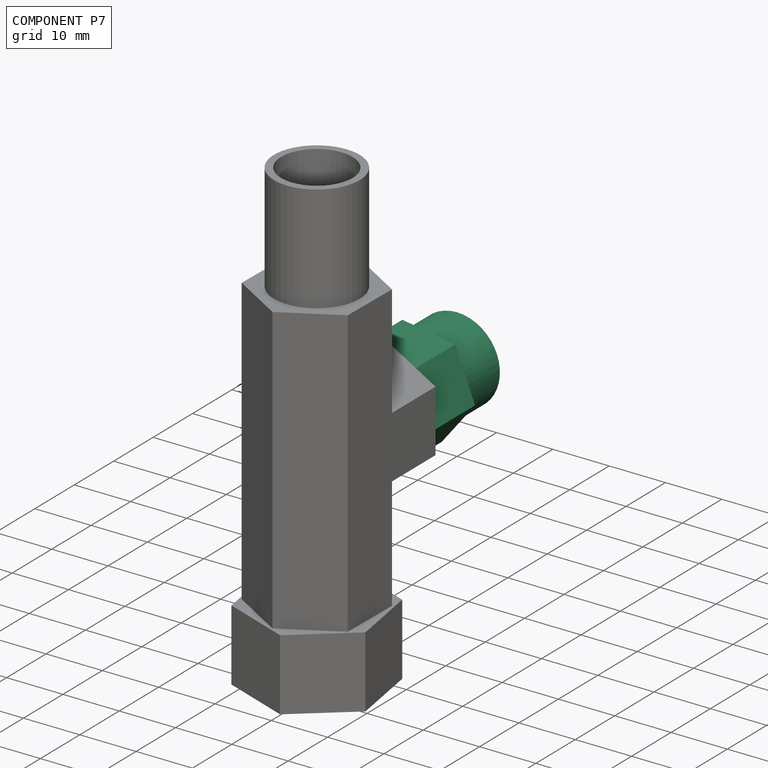
[diagram: component P7 — assembled]
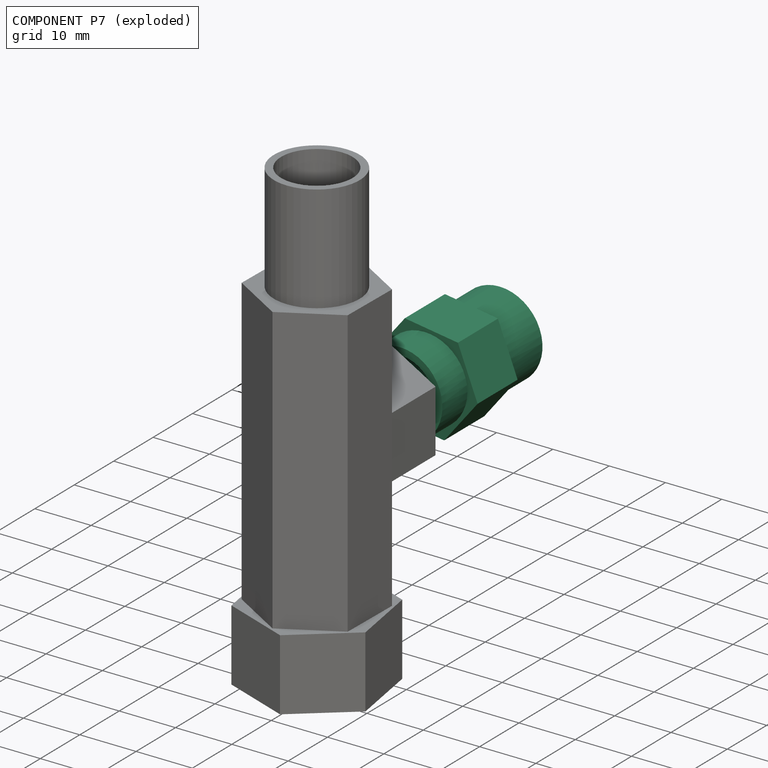
[diagram: component P7 — exploded]
COMPONENT P7 — recipe-attached (CADFS 00433584, mesh-verified: the recipe's output STEP matches this component's geometry to below the mesh-comparison resolution (tessellation chordal tolerance ~0.0544 mm)).
Held by: FASTENED mate "Fastened 1" to P2; FASTENED mate "Fastened 1" to P2.
Construction recipe (FeatureScript — the CAD program that rebuilds this solid; sketch coordinates are in the units given by the * unit suffixes, e.g. mm):

FeatureScript 1511;
import(path : "onshape/std/geometry.fs", version : "1511.0");
import(path : "onshape/std/common.fs", version : "1511.0");
const mm = millimeter;
const VERTEX = EntityType.VERTEX;
const EDGE = EntityType.EDGE;
const FACE = EntityType.FACE;
const BODY = EntityType.BODY;
function v(x, y){return vector(x, y);}
function OD(order){return orderDisambiguation(order);}
function OSD(set){return originalSetDisambiguation(set);}
function TD(topology){return topologyDisambiguation(topology);}
function TDD(query){return trueDependencyDisambiguation(query);}
function sQuery(a, b, c) {return sketchEntityQuery(a, b, c);}

annotation { "Feature Type Name" : "Feature", "Feature Type Description" : "" }
export const myFeature = defineFeature(function(context is Context, id is Id, definition is map)
    precondition{}
    {
        {
            var Q0;
            Q0=qCreatedBy(makeId("Right.planeOp"),FACE);
            var sketch = newSketch(context, id + "F0", { "sketchPlane" : qUnion([Q0])});
            skCircle(sketch, "E0.cCircle", {"center": v(0, 0) * mm, "radius": 8.26 * mm, "construction": true});
            skLineSegment(sketch, "E0.0", {"start": v(-7.46, 5.94) * mm, "end": v(1.41, 9.43) * mm});
            skLineSegment(sketch, "E0.1", {"start": v(1.41, 9.43) * mm, "end": v(8.87, 3.5) * mm});
            skLineSegment(sketch, "E0.2", {"start": v(8.87, 3.5) * mm, "end": v(7.46, -5.94) * mm});
            skLineSegment(sketch, "E0.3", {"start": v(7.46, -5.94) * mm, "end": v(-1.41, -9.43) * mm});
            skLineSegment(sketch, "E0.4", {"start": v(-1.41, -9.43) * mm, "end": v(-8.87, -3.5) * mm});
            skLineSegment(sketch, "E0.5", {"start": v(-8.87, -3.5) * mm, "end": v(-7.46, 5.94) * mm});
            skPoint(sketch, "E0.0.midPoint", {"position": v(-3.02, 7.68) * mm});
            skSolve(sketch);
        }
        {
            var Q0;
            Q0=makeQuery(id+"F0.imprint","IMPRINT",FACE,{"disambiguationData":[TD([[makeQuery(id+"F0.imprint","IMPRINT",EDGE,{"derivedFrom":sQuery(id+"F0.wireOp",EDGE,"E0.0")}),-1.0]])]});
            extrude(context, id + "F1", {"entities" : qUnion([Q0]), "depth" : 10.16 * mm});
        }
        {
            var Q0;
            Q0=makeQuery(id+"F1.opExtrude","CAP_FACE",FACE,{"disambiguationData":[OSD([sQuery(id+"F0.wireOp",EDGE,"E0.0"),sQuery(id+"F0.wireOp",EDGE,"E0.1"),sQuery(id+"F0.wireOp",EDGE,"E0.2"),sQuery(id+"F0.wireOp",EDGE,"E0.3"),sQuery(id+"F0.wireOp",EDGE,"E0.4"),sQuery(id+"F0.wireOp",EDGE,"E0.5")])],"isStart":false});
            var sketch = newSketch(context, id + "F2", { "sketchPlane" : qUnion([Q0])});
            skCircle(sketch, "E1", {"center": v(0, 0) * mm, "radius": 7.62 * mm});
            skSolve(sketch);
        }
        {
            var Q0;
            Q0=makeQuery(id+"F2.imprint","IMPRINT",FACE,{"disambiguationData":[TD([[makeQuery(id+"F2.imprint","IMPRINT",EDGE,{"derivedFrom":sQuery(id+"F2.wireOp",EDGE,"E1")}),1.0]])]});
            extrude(context, id + "F3", {"entities" : qUnion([Q0]), "operationType" : NewBodyOperationType.ADD, "depth" : 6.35 * mm, "hasSecondDirection" : true, "secondDirectionOppositeDirection" : true, "secondDirectionDepth" : 19.05 * mm});
        }
        {
            var Q0;
            Q0=makeQuery(id+"F3.opExtrude","CAP_FACE",FACE,{"disambiguationData":[OSD([sQuery(id+"F2.wireOp",EDGE,"E1")])],"isStart":true});
            var sketch = newSketch(context, id + "F4", { "sketchPlane" : qUnion([Q0])});
            skCircle(sketch, "E2", {"center": v(0, 0) * mm, "radius": 6.35 * mm});
            skSolve(sketch);
        }
        {
            var Q0;
            Q0=makeQuery(id+"F4.imprint","IMPRINT",FACE,{"disambiguationData":[TD([[makeQuery(id+"F4.imprint","IMPRINT",EDGE,{"derivedFrom":sQuery(id+"F4.wireOp",EDGE,"E2")}),1.0]])]});
            extrude(context, id + "F5", {"entities" : qUnion([Q0]), "operationType" : NewBodyOperationType.REMOVE, "endBound" : BoundingType.THROUGH_ALL, "oppositeDirection" : true, "depth" : 25.4 * mm});
        }
    });
PROVENANCE & LICENSES
Assembly (occurrences, transforms, mates, per-part STEP geometry): AutoMate dataset, Zenodo record 7776208, CC0.
Construction recipes: CADFS (HuggingFace VladPyatov/CADFS, CC-BY-4.0, layered over the ABC dataset), FeatureScript reconstruction programs keyed by ABC model id.
Join: ABC meta listings map ABC model id -> Onshape documentId; within a shared document, parts are matched by geometric signature (bounding-box dims + volume at 0.1% relative tolerance, exact B-rep face/solid counts).
Verification: 4 of this assembly's 8 components carry a recipe attachment, and every attachment is mesh-verified: the CADFS STEP and the AutoMate member STEP were compared as meshes in their shared local frame (symmetric sampled-point-to-mesh distance); worst across the 4 attachments: below the mesh-comparison resolution (tessellation chordal tolerance ~0.136 mm) on a 90 mm part.
Renders: orthographic iso camera (az 35 / el 25); the floor grid conveys scale (grid pitch printed in each image; no ruler). In the exploded view each component is displaced by its stored offset vector: the offsets alone carry the explosion direction (mate normal/axis signs are not orientation cues and do not encode it), and separation distances are assigned per mate-chain, not proportionally to assembly-order depth.
